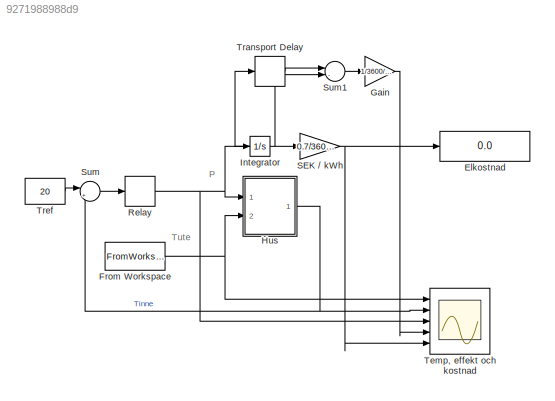
MODEL slx_9271988988d9
KIND model
CONFIG AbsTol = 1e-6
CONFIG EnableMultiTasking = off
CONFIG FixedStep = 100
CONFIG MaxStep = auto
CONFIG MinStep = 100
CONFIG PreLoadFcn = thermdat
CONFIG RelTol = 1e-3
CONFIG SampleTimeConstraint = Unconstrained
CONFIG Solver = ode45
CONFIG SolverName = ode45
CONFIG StartTime = 0.0
CONFIG StopTime = 31536000
BLOCK [Display] Elkostnad
  Decimation = 1
  Ports = [1]
BLOCK [FromWorkspace] From Workspace
  SampleTime = 3600
  VariableName = Timtemp
BLOCK [Gain] Gain
  Gain = 1/3600/1000
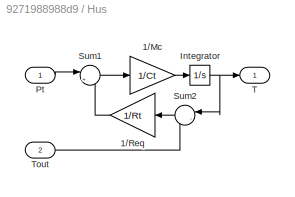
BLOCK [SubSystem] Hus
  Ports = [2, 1]
  RequestExecContextInheritance = off
  Variant = off
BLOCK [Gain] Hus/1//Mc
  Gain = 1/Ct
BLOCK [Gain] Hus/1//Req
  Gain = 1/Rt
BLOCK [Integrator] Hus/Integrator
  InitialCondition = 22
  Ports = [1, 1]
BLOCK [Inport] Hus/Pt
  IconDisplay = Port number
BLOCK [Sum] Hus/Sum1
  IconShape = round
  Inputs = |++
  Ports = [2, 1]
BLOCK [Sum] Hus/Sum2
  IconShape = round
  Inputs = |-+
  Ports = [2, 1]
BLOCK [Outport] Hus/T
  IconDisplay = Port number
  InitialOutput = 0
BLOCK [Inport] Hus/Tout
  IconDisplay = Port number
  Port = 2
BLOCK [Integrator] Integrator
  Ports = [1, 1]
BLOCK [Relay] Relay
  OffSwitchValue = -dt/2
  OnOutputValue = Pt
  OnSwitchValue = dt/2
BLOCK [Gain] SEK // kWh
  Gain = 0.7/3600/1000
BLOCK [Sum] Sum
  IconShape = round
  InputSameDT = off
  Inputs = |+-
  OutDataTypeStr = Inherit: Inherit via internal rule
  Ports = [2, 1]
BLOCK [Sum] Sum1
  IconShape = round
  InputSameDT = off
  Inputs = |-+
  OutDataTypeStr = Inherit: Inherit via internal rule
  Ports = [2, 1]
BLOCK [Scope] Temp, effekt och kostnad
  NumInputPorts = 5
  Ports = [5]
  ScopeSpecificationString = C++SS(StrPVP('Location','[95, 320, 592, 834]'),StrPVP('Open','off'),StrPVP('TickLabels','on'),MxPVP('AxesTitles',53,'struct(''axes1'',''Tute  [Celcius]'',''axes2'',''Tinne [Celcius]'',''axes3'',''P [W]'',''axes4'',''Pn [kW]'',''axes5'',''Årskostnad [SEK]'')'),StrPVP('TimeRange','31536000'),StrPVP('YMin','-30~19~0~-2.5~0'),StrPVP('YMax','40~30~12500~12.5~20000'),StrPVP('SaveToWorkspace','on'),StrPV...<+164ch>
BLOCK [TransportDelay] Transport Delay
  DelayTime = 3600
  Ports = [1, 1]
BLOCK [Constant] Tref
  Value = 20
ANNOTATION (root): P
ANNOTATION (root): Tute
NET From Workspace:1 -> Hus:2, Temp, effekt och kostnad:1
LINE Gain:1 -> Temp, effekt och kostnad:4
LINE Hus/1//Mc:1 -> Hus/Integrator:1
LINE Hus/1//Req:1 -> Hus/Sum1:2
NET Hus/Integrator:1 -> Hus/Sum2:1, Hus/T:1
LINE Hus/Pt:1 -> Hus/Sum1:1
LINE Hus/Sum1:1 -> Hus/1//Mc:1
LINE Hus/Sum2:1 -> Hus/1//Req:1
LINE Hus/Tout:1 -> Hus/Sum2:2
NET Hus:1 -> Sum:2, Temp, effekt och kostnad:2
NET Integrator:1 -> SEK // kWh:1, Sum1:2, Transport Delay:1
NET Relay:1 -> Hus:1, Integrator:1, Temp, effekt och kostnad:3
NET SEK // kWh:1 -> Elkostnad:1, Temp, effekt och kostnad:5
LINE Sum1:1 -> Gain:1
LINE Sum:1 -> Relay:1
LINE Transport Delay:1 -> Sum1:1
LINE Tref:1 -> Sum:1
note: NET lines group one-source signal fan-out (src -> all destinations, sorted); 1:1 wires keep LINE
